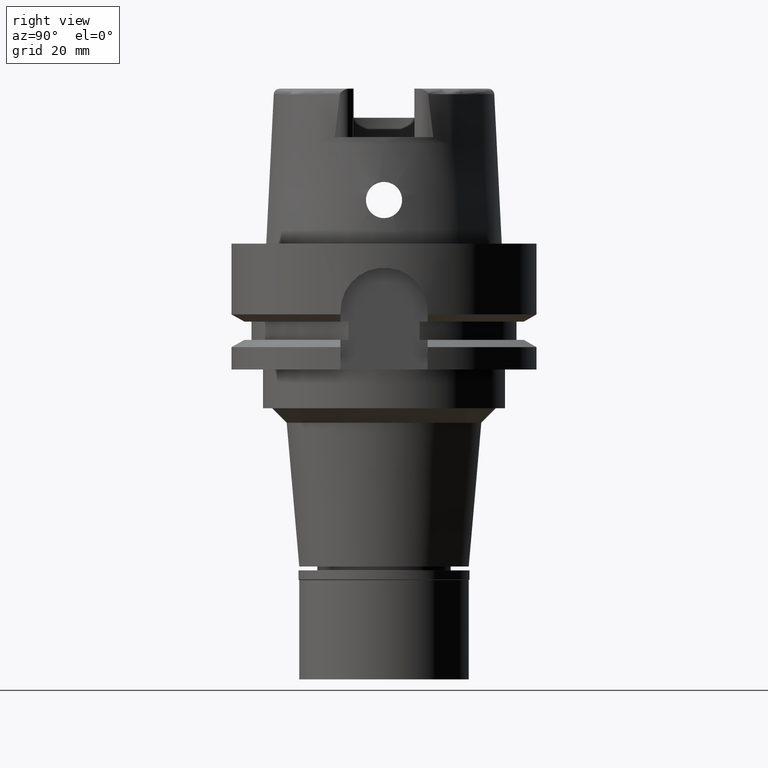
[diagram: clean part render]
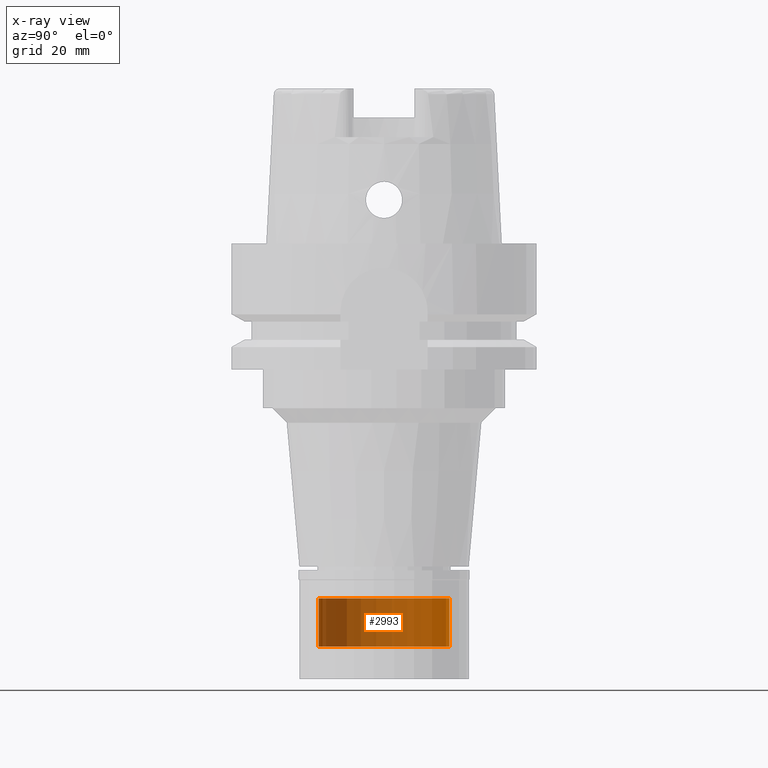
[diagram: x-ray — body ghosted, one internal face saturated and labeled with its STEP entity id]
A machine part, right view, then the same camera in x-ray: the body is ghosted and one INTERNAL B-rep face — a face not visible from any outside direction — is saturated and labeled: STEP entity #2993.
In plain terms, the highlighted cylindrical surface (partial cylindrical patch) has radius 13.5 mm, axis along (0, 0, 1).
Its self-contained STEP definition (entity closure, byte-faithful):
#82 = VERTEX_POINT ( 'NONE', #4305 ) ;
#365 = VERTEX_POINT ( 'NONE', #492 ) ;
#492 = CARTESIAN_POINT ( 'NONE',  ( 0.0000000000000000000, -13.50000000000000000, -83.29999999999999716 ) ) ;
#542 = EDGE_CURVE ( 'NONE', #82, #365, #2303, .T. ) ;
#599 = DIRECTION ( 'NONE',  ( 0.0000000000000000000, 1.000000000000000000, 0.0000000000000000000 ) ) ;
#612 = ORIENTED_EDGE ( 'NONE', *, *, #542, .F. ) ;
#619 = VERTEX_POINT ( 'NONE', #3875 ) ;
#633 = DIRECTION ( 'NONE',  ( 0.0000000000000000000, 0.0000000000000000000, -1.000000000000000000 ) ) ;
#686 = DIRECTION ( 'NONE',  ( 0.0000000000000000000, 0.0000000000000000000, 1.000000000000000000 ) ) ;
#1075 = CARTESIAN_POINT ( 'NONE',  ( 0.0000000000000000000, 0.0000000000000000000, -73.29999999999999716 ) ) ;
#1254 = AXIS2_PLACEMENT_3D ( 'NONE', #4559, #686, #1539 ) ;
#1314 = EDGE_CURVE ( 'NONE', #619, #1962, #2006, .T. ) ;
#1539 = DIRECTION ( 'NONE',  ( 0.0000000000000000000, 1.000000000000000000, 0.0000000000000000000 ) ) ;
#1691 = AXIS2_PLACEMENT_3D ( 'NONE', #1075, #3876, #4131 ) ;
#1758 = ORIENTED_EDGE ( 'NONE', *, *, #1314, .T. ) ;
#1946 = EDGE_CURVE ( 'NONE', #82, #619, #4795, .T. ) ;
#1962 = VERTEX_POINT ( 'NONE', #4216 ) ;
#2006 = LINE ( 'NONE', #3337, #4621 ) ;
#2303 = LINE ( 'NONE', #4585, #4705 ) ;
#2644 = CARTESIAN_POINT ( 'NONE',  ( 0.0000000000000000000, 0.0000000000000000000, 0.0000000000000000000 ) ) ;
#2855 = DIRECTION ( 'NONE',  ( 0.0000000000000000000, 0.0000000000000000000, -1.000000000000000000 ) ) ;
#2993 = ADVANCED_FACE ( 'NONE', ( #3113 ), #4062, .T. ) ;
#3063 = ORIENTED_EDGE ( 'NONE', *, *, #3228, .T. ) ;
#3113 = FACE_OUTER_BOUND ( 'NONE', #4574, .T. ) ;
#3228 = EDGE_CURVE ( 'NONE', #1962, #365, #5260, .T. ) ;
#3337 = CARTESIAN_POINT ( 'NONE',  ( 0.0000000000000000000, 13.50000000000000000, -73.29999999999999716 ) ) ;
#3875 = CARTESIAN_POINT ( 'NONE',  ( 0.0000000000000000000, 13.50000000000000000, -73.29999999999999716 ) ) ;
#3876 = DIRECTION ( 'NONE',  ( 0.0000000000000000000, 0.0000000000000000000, -1.000000000000000000 ) ) ;
#4062 = CYLINDRICAL_SURFACE ( 'NONE', #4467, 13.50000000000000000 ) ;
#4131 = DIRECTION ( 'NONE',  ( 0.0000000000000000000, -1.000000000000000000, 0.0000000000000000000 ) ) ;
#4216 = CARTESIAN_POINT ( 'NONE',  ( 0.0000000000000000000, 13.50000000000000000, -83.29999999999999716 ) ) ;
#4305 = CARTESIAN_POINT ( 'NONE',  ( 0.0000000000000000000, -13.50000000000000000, -73.29999999999999716 ) ) ;
#4467 = AXIS2_PLACEMENT_3D ( 'NONE', #2644, #4910, #599 ) ;
#4559 = CARTESIAN_POINT ( 'NONE',  ( 0.0000000000000000000, 0.0000000000000000000, -83.29999999999999716 ) ) ;
#4574 = EDGE_LOOP ( 'NONE', ( #3063, #612, #5076, #1758 ) ) ;
#4585 = CARTESIAN_POINT ( 'NONE',  ( 0.0000000000000000000, -13.50000000000000000, -73.29999999999999716 ) ) ;
#4621 = VECTOR ( 'NONE', #2855, 1000.000000000000000 ) ;
#4705 = VECTOR ( 'NONE', #633, 1000.000000000000000 ) ;
#4795 = CIRCLE ( 'NONE', #1691, 13.50000000000000000 ) ;
#4910 = DIRECTION ( 'NONE',  ( 0.0000000000000000000, 0.0000000000000000000, 1.000000000000000000 ) ) ;
#5076 = ORIENTED_EDGE ( 'NONE', *, *, #1946, .T. ) ;
#5260 = CIRCLE ( 'NONE', #1254, 13.50000000000000000 ) ;